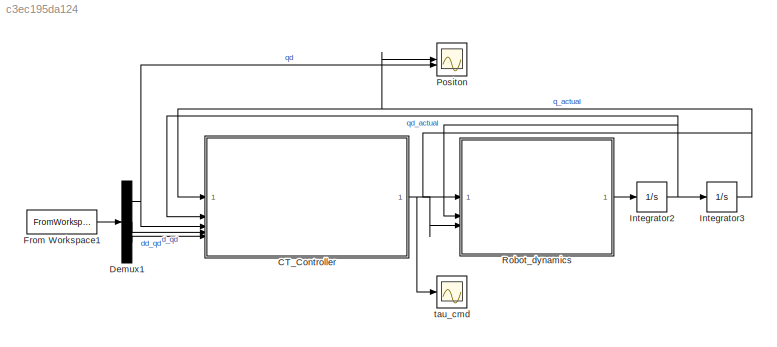
MODEL slx_c3ec195da124
KIND model
CONFIG AbsTol = auto
CONFIG EnableMultiTasking = off
CONFIG FixedStep = auto
CONFIG MaxStep = auto
CONFIG MinStep = auto
CONFIG RelTol = 1e-3
CONFIG SampleTimeConstraint = Unconstrained
CONFIG SolverName = VariableStepAuto
CONFIG StartTime = 0.0
CONFIG StopTime = 4
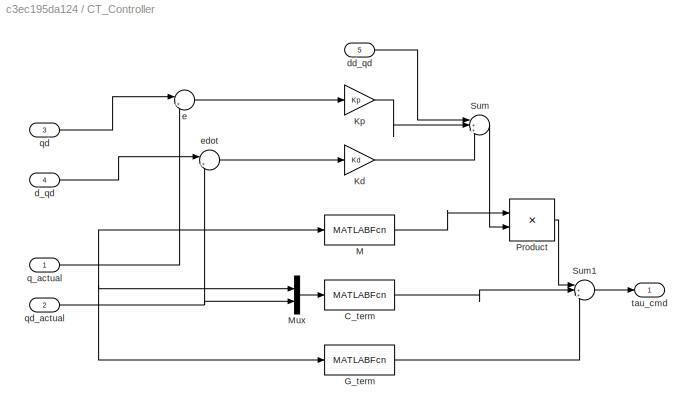
BLOCK [SubSystem] CT_Controller
BLOCK [MATLABFcn] CT_Controller/C_term
  MATLABFcn = my_velocity_product(u)
  OutputDimensions = 6
BLOCK [MATLABFcn] CT_Controller/G_term
  MATLABFcn = my_gravity_torque(u)
  OutputDimensions = 6
BLOCK [Gain] CT_Controller/Kd
  Gain = Kd
  Multiplication = Matrix(K*u) (u vector)
BLOCK [Gain] CT_Controller/Kp
  Gain = Kp
  Multiplication = Matrix(K*u) (u vector)
BLOCK [MATLABFcn] CT_Controller/M
  MATLABFcn = my_mass_matrix(u)
  Output1D = off
  OutputDimensions = [6 6]
BLOCK [Mux] CT_Controller/Mux
  DisplayOption = bar
  Inputs = 2
BLOCK [Product] CT_Controller/Product
  Multiplication = Matrix(*)
BLOCK [Sum] CT_Controller/Sum
  Inputs = |+++
BLOCK [Sum] CT_Controller/Sum1
  Inputs = |+++
BLOCK [Inport] CT_Controller/d_qd
  Port = 4
BLOCK [Inport] CT_Controller/dd_qd
  Port = 5
BLOCK [Sum] CT_Controller/e
  Inputs = |+-
  NameLocation = top
BLOCK [Sum] CT_Controller/edot
  Inputs = |+-
  NameLocation = top
BLOCK [Inport] CT_Controller/q_actual
BLOCK [Inport] CT_Controller/qd
  Port = 3
BLOCK [Inport] CT_Controller/qd_actual
  Port = 2
BLOCK [Outport] CT_Controller/tau_cmd
BLOCK [Demux] Demux1
  Outputs = 3
BLOCK [FromWorkspace] From Workspace1
  VariableName = trajectory_data
BLOCK [Integrator] Integrator2
  InitialCondition = qd_d(:,1)
BLOCK [Integrator] Integrator3
  InitialCondition = q_d(:,1)
BLOCK [Scope] Positon
  Floating = off
  NumInputPorts = 2
  ScopeSpecificationString = Simulink.scopes.TimeScopeBlockCfg('CurrentConfiguration', extmgr.ConfigurationSet(extmgr.Configuration('Core','General UI',true),extmgr.Configuration('Core','Source UI',true),extmgr.Configuration('Sources','WiredSimulink',true,'DataLoggingVariableName','ScopeData1'),extmgr.Configuration('Visuals','Time Domain',true,'SerializedDisplays',{struct('MinYLimReal','-2.48709','MaxYLimReal','1.4399','YLabe...<+1848ch>
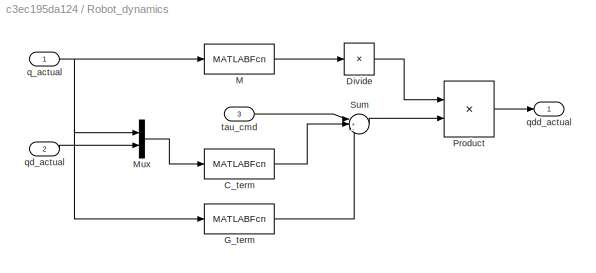
BLOCK [SubSystem] Robot_dynamics
BLOCK [MATLABFcn] Robot_dynamics/C_term
  MATLABFcn = my_velocity_product(u)
  OutputDimensions = 6
BLOCK [Product] Robot_dynamics/Divide
  Inputs = /
  Multiplication = Matrix(*)
BLOCK [MATLABFcn] Robot_dynamics/G_term
  MATLABFcn = my_gravity_torque(u)
  OutputDimensions = 6
BLOCK [MATLABFcn] Robot_dynamics/M
  MATLABFcn = my_mass_matrix(u)
  Output1D = off
  OutputDimensions = [6 6]
BLOCK [Mux] Robot_dynamics/Mux
  DisplayOption = bar
  Inputs = 2
BLOCK [Product] Robot_dynamics/Product
  Multiplication = Matrix(*)
BLOCK [Sum] Robot_dynamics/Sum
  Inputs = |+--
BLOCK [Inport] Robot_dynamics/q_actual
BLOCK [Inport] Robot_dynamics/qd_actual
  Port = 2
BLOCK [Outport] Robot_dynamics/qdd_actual
BLOCK [Inport] Robot_dynamics/tau_cmd
  Port = 3
BLOCK [Scope] tau_cmd
  Floating = off
  NumInputPorts = 1
  ScopeSpecificationString = Simulink.scopes.TimeScopeBlockCfg('CurrentConfiguration', extmgr.ConfigurationSet(extmgr.Configuration('Core','General UI',true),extmgr.Configuration('Core','Source UI',true),extmgr.Configuration('Sources','WiredSimulink',true,'DataLoggingVariableName','ScopeData1'),extmgr.Configuration('Visuals','Time Domain',true,'SerializedDisplays',{struct('MinYLimReal','-75.54241','MaxYLimReal','15.51588','YL...<+1518ch>
LINE CT_Controller/C_term:1 -> CT_Controller/Sum1:2
LINE CT_Controller/G_term:1 -> CT_Controller/Sum1:3
LINE CT_Controller/Kd:1 -> CT_Controller/Sum:3
LINE CT_Controller/Kp:1 -> CT_Controller/Sum:2
LINE CT_Controller/M:1 -> CT_Controller/Product:1
LINE CT_Controller/Mux:1 -> CT_Controller/C_term:1
LINE CT_Controller/Product:1 -> CT_Controller/Sum1:1
LINE CT_Controller/Sum1:1 -> CT_Controller/tau_cmd:1
LINE CT_Controller/Sum:1 -> CT_Controller/Product:2
LINE CT_Controller/d_qd:1 -> CT_Controller/edot:1
LINE CT_Controller/dd_qd:1 -> CT_Controller/Sum:1
LINE CT_Controller/e:1 -> CT_Controller/Kp:1
LINE CT_Controller/edot:1 -> CT_Controller/Kd:1
NET CT_Controller/q_actual:1 -> CT_Controller/G_term:1, CT_Controller/M:1, CT_Controller/Mux:1, CT_Controller/e:2
LINE CT_Controller/qd:1 -> CT_Controller/e:1
NET CT_Controller/qd_actual:1 -> CT_Controller/Mux:2, CT_Controller/edot:2
NET CT_Controller:1 -> Robot_dynamics:3, tau_cmd:1
NET Demux1:1 -> CT_Controller:3, Positon:2
LINE Demux1:2 -> CT_Controller:4
LINE Demux1:3 -> CT_Controller:5
LINE From Workspace1:1 -> Demux1:1
NET Integrator2:1 -> CT_Controller:2, Integrator3:1, Robot_dynamics:2
NET Integrator3:1 -> CT_Controller:1, Positon:1, Robot_dynamics:1
LINE Robot_dynamics/C_term:1 -> Robot_dynamics/Sum:2
LINE Robot_dynamics/Divide:1 -> Robot_dynamics/Product:1
LINE Robot_dynamics/G_term:1 -> Robot_dynamics/Sum:3
LINE Robot_dynamics/M:1 -> Robot_dynamics/Divide:1
LINE Robot_dynamics/Mux:1 -> Robot_dynamics/C_term:1
LINE Robot_dynamics/Product:1 -> Robot_dynamics/qdd_actual:1
LINE Robot_dynamics/Sum:1 -> Robot_dynamics/Product:2
NET Robot_dynamics/q_actual:1 -> Robot_dynamics/G_term:1, Robot_dynamics/M:1, Robot_dynamics/Mux:1
LINE Robot_dynamics/qd_actual:1 -> Robot_dynamics/Mux:2
LINE Robot_dynamics/tau_cmd:1 -> Robot_dynamics/Sum:1
LINE Robot_dynamics:1 -> Integrator2:1
note: NET lines group one-source signal fan-out (src -> all destinations, sorted); 1:1 wires keep LINE
